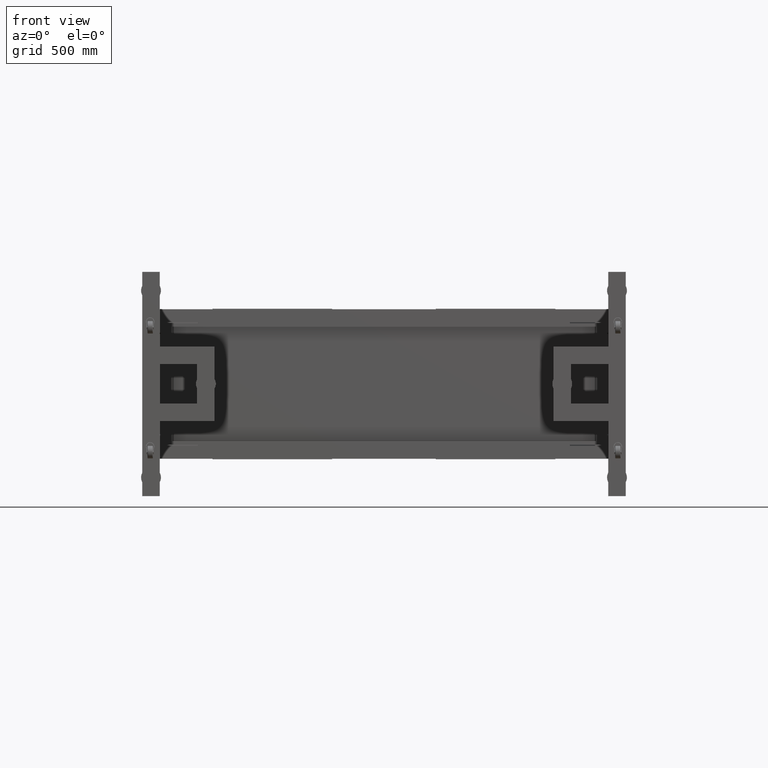
[diagram: clean part render]
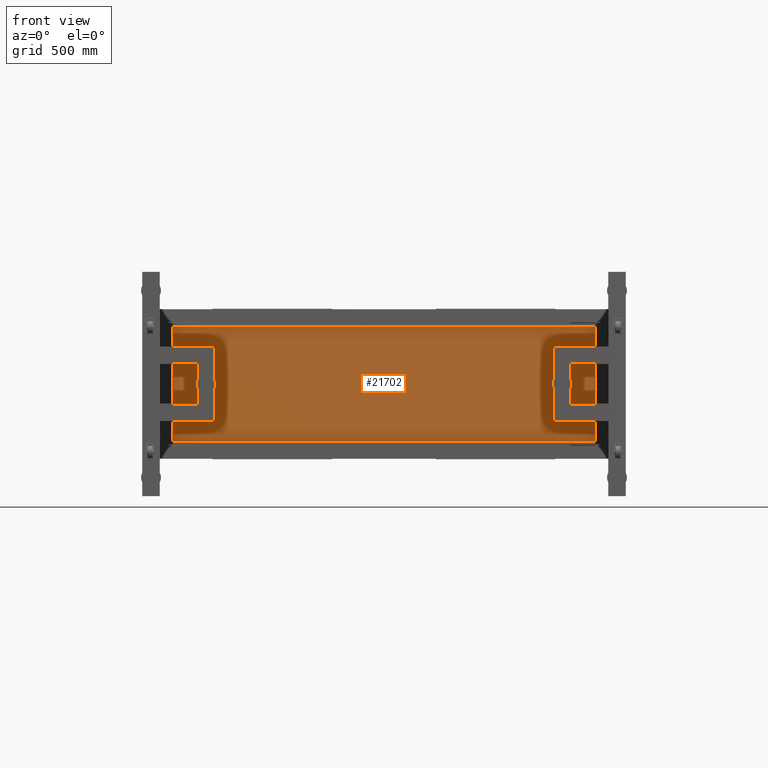
[diagram: same view with one face highlighted and labeled with its STEP entity id]
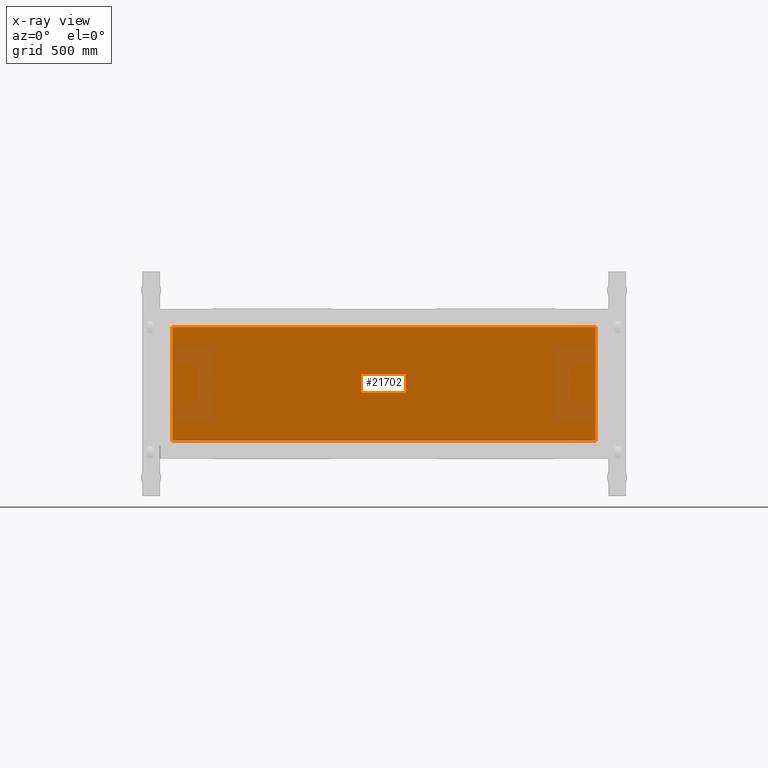
[diagram: x-ray of the same camera — body ghosted, the highlighted face saturated]
A machine part, front view. The second image highlights one B-rep face of the part: STEP entity #21702.
The next image is the same camera in x-ray: the body ghosted, the highlighted face saturated — about 9% of this face is hidden behind the body in this view.
In plain terms, the highlighted planar face has unit normal (-0, 1, -0).
Its self-contained STEP definition (entity closure, byte-faithful):
#785 = CARTESIAN_POINT ( 'NONE',  ( -1268.172487437185282, 555.4410804020124033, -228.4899999999998954 ) ) ;
#3502 = DIRECTION ( 'NONE',  ( -2.768038506440323819E-16, 1.000000000000000000, -1.000000000000000472E-15 ) ) ;
#4602 = VECTOR ( 'NONE', #8872, 1000.000000000000000 ) ;
#4763 = VECTOR ( 'NONE', #7648, 1000.000000000000000 ) ;
#5589 = ORIENTED_EDGE ( 'NONE', *, *, #73202, .T. ) ;
#6989 = EDGE_LOOP ( 'NONE', ( #5589, #37828, #16605, #53504 ) ) ;
#7648 = DIRECTION ( 'NONE',  ( 1.000000000000000000, 2.768038506440323819E-16, 0.000000000000000000 ) ) ;
#8696 = DIRECTION ( 'NONE',  ( -2.768038506440324911E-31, 1.000000000000000472E-15, 1.000000000000000000 ) ) ;
#8872 = DIRECTION ( 'NONE',  ( -1.599092233257933979E-31, 1.000000000000000472E-15, 1.000000000000000000 ) ) ;
#9502 = PLANE ( 'NONE',  #60686 ) ;
#13118 = LINE ( 'NONE', #19079, #62658 ) ;
#13696 = CARTESIAN_POINT ( 'NONE',  ( -1268.172487437185055, 555.4410804020126307, 1.110223024625154773E-13 ) ) ;
#14671 = VERTEX_POINT ( 'NONE', #21438 ) ;
#14756 = VECTOR ( 'NONE', #59385, 1000.000000000000000 ) ;
#16605 = ORIENTED_EDGE ( 'NONE', *, *, #20189, .T. ) ;
#17537 = EDGE_CURVE ( 'NONE', #14671, #34246, #13118, .T. ) ;
#19079 = CARTESIAN_POINT ( 'NONE',  ( 431.8275125628147180, 555.4410804020128580, 1.110223024625154773E-13 ) ) ;
#20189 = EDGE_CURVE ( 'NONE', #34246, #49018, #72512, .T. ) ;
#20386 = CARTESIAN_POINT ( 'NONE',  ( -1916.662487437184382, 555.4410804020120622, -228.4899999999998954 ) ) ;
#21438 = CARTESIAN_POINT ( 'NONE',  ( 431.8275125628149453, 555.4410804020126307, -228.4899999999998954 ) ) ;
#21702 = ADVANCED_FACE ( 'NONE', ( #69740 ), #9502, .F. ) ;
#27139 = CARTESIAN_POINT ( 'NONE',  ( 431.8275125628147180, 555.4410804020130854, 228.4900000000001228 ) ) ;
#31650 = LINE ( 'NONE', #13696, #4602 ) ;
#33837 = CARTESIAN_POINT ( 'NONE',  ( -718.1724874371843725, 555.4410804020125170, 1.110223024625156540E-13 ) ) ;
#34246 = VERTEX_POINT ( 'NONE', #27139 ) ;
#37828 = ORIENTED_EDGE ( 'NONE', *, *, #17537, .T. ) ;
#42206 = CARTESIAN_POINT ( 'NONE',  ( 480.3175125628156934, 555.4410804020130854, 228.4900000000001228 ) ) ;
#43202 = CARTESIAN_POINT ( 'NONE',  ( -1268.172487437185055, 555.4410804020128580, 228.4900000000001228 ) ) ;
#43430 = DIRECTION ( 'NONE',  ( -1.168946273182390932E-31, 1.000000000000000472E-15, 1.000000000000000000 ) ) ;
#49018 = VERTEX_POINT ( 'NONE', #43202 ) ;
#53504 = ORIENTED_EDGE ( 'NONE', *, *, #55536, .F. ) ;
#55536 = EDGE_CURVE ( 'NONE', #57114, #49018, #31650, .T. ) ;
#57114 = VERTEX_POINT ( 'NONE', #785 ) ;
#59385 = DIRECTION ( 'NONE',  ( -1.000000000000000000, -2.768038506440323819E-16, 0.000000000000000000 ) ) ;
#60686 = AXIS2_PLACEMENT_3D ( 'NONE', #33837, #3502, #8696 ) ;
#61923 = LINE ( 'NONE', #20386, #4763 ) ;
#62658 = VECTOR ( 'NONE', #43430, 1000.000000000000000 ) ;
#69740 = FACE_OUTER_BOUND ( 'NONE', #6989, .T. ) ;
#72512 = LINE ( 'NONE', #42206, #14756 ) ;
#73202 = EDGE_CURVE ( 'NONE', #57114, #14671, #61923, .T. ) ;